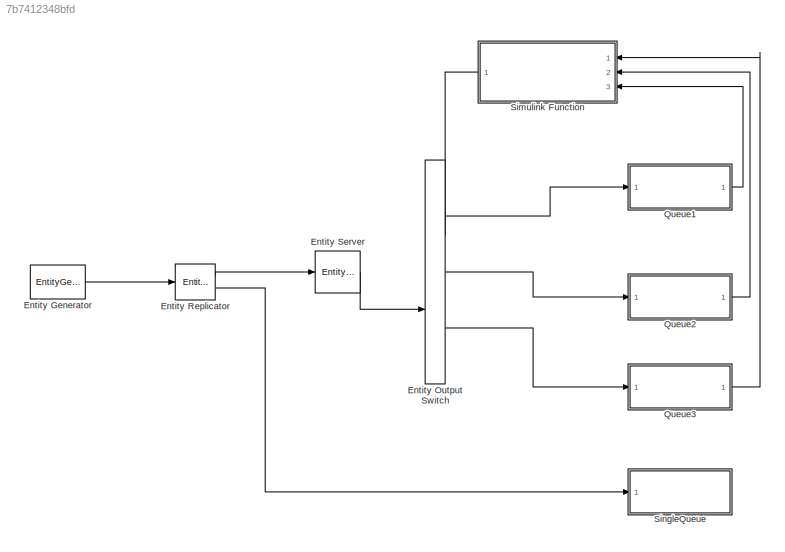
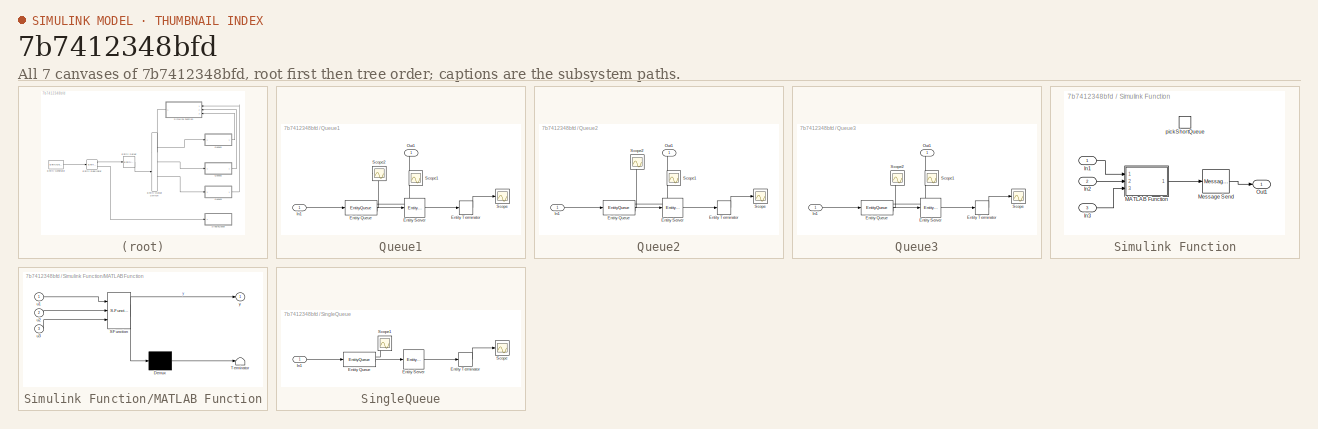
[diagram: thumbnail index - all 7 canvases of the model, root first then tree order]
MODEL slx_7b7412348bfd
KIND model
CONFIG AbsTol = auto
CONFIG FixedStep = auto
CONFIG MaxStep = auto
CONFIG MinStep = auto
CONFIG RelTol = 1e-3
CONFIG SampleTimeConstraint = Unconstrained
CONFIG Solver = VariableStepDiscrete
CONFIG SolverMode = Auto
CONFIG SolverName = VariableStepDiscrete
CONFIG StartTime = 0.0
CONFIG StopTime = 1000
BLOCK [EntityGenerator] Entity Generator
  AttributeName = ServiceTime
  EntityType = Structured
  EntityTypeName = Entity
  GenerateAction = persistent init\nif (isempty(init))\n    rng(177);\n    init = true;\nend\n\npr = rand;\nif(pr <=0.29)\n    entity.ServiceTime = exprnd(1);\nelse if (pr <=0.56)\n            entity.ServiceTime = exprnd(2);\n     else\n        entity.ServiceTime = exprnd(5);\nend
  IntergenerationTimeAction = persistent init\nif (isempty(init))\n    rng(177);\n    init = true;\nend\n\npr = rand;\nif(pr <=0.29)\n    entity.ServiceTime = exprnd(1);\nelse if (pr <=0.56)\n            entity.ServiceTime = exprnd(2);\n     else\n        entity.ServiceTime = exprnd(5);\nend
  OutputPortMap = o3
  OutputPortMessageModes = m
  Ports = [0, 1]
BLOCK [EntityOutputSwitch] Entity Output Switch
  InputPortMap = u0,u1
  InputPortMessageModes = m,m
  NumberOutputPorts = 3
  OutputPortMap = o0,o1,o2
  OutputPortMessageModes = m,m,m
  Ports = [2, 3]
  SwitchAttributeName = Attribute1
  SwitchingCriterion = From control port
BLOCK [EntityReplicator] Entity Replicator
  InputPortMap = u0
  InputPortMessageModes = m
  OutputPortMap = o0,o1
  OutputPortMessageModes = m,m
  Ports = [1, 2]
BLOCK [EntityServer] Entity Server
  Capacity = 3
  InputPortMap = u2
  InputPortMessageModes = m
  OutputPortMap = o9
  OutputPortMessageModes = m
  Ports = [1, 1]
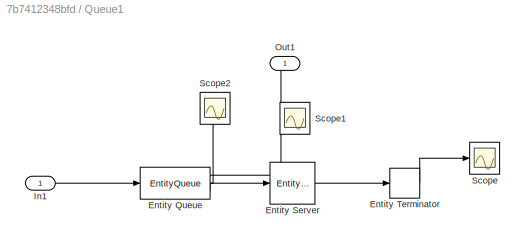
BLOCK [SubSystem] Queue1
  Ports = [1, 1]
  RequestExecContextInheritance = off
  Variant = off
BLOCK [EntityQueue] Queue1/Entity Queue
  AverageWait = on
  InputPortMap = u0
  InputPortMessageModes = m
  NumberEntitiesInBlock = on
  OutputPortMap = o1,o2,o5
  OutputPortMessageModes = n,n,m
  Ports = [1, 3]
BLOCK [EntityServer] Queue1/Entity Server
  Capacity = 1
  InputPortMap = u2
  InputPortMessageModes = m
  OutputPortMap = o9
  OutputPortMessageModes = m
  Ports = [1, 1]
BLOCK [EntityTerminator] Queue1/Entity Terminator
  InputPortMap = u0
  InputPortMessageModes = m
  NumberEntitiesArrived = on
  OutputPortMap = o0
  Ports = [1, 1]
BLOCK [Inport] Queue1/In1
  IconDisplay = Port number
BLOCK [Outport] Queue1/Out1
  IconDisplay = Port number
BLOCK [Scope] Queue1/Scope
  Ports = [1]
  ScopeSpecificationString = C++SS(StrPVP('SaveName','ScopeData'))
BLOCK [Scope] Queue1/Scope1
  Ports = [1]
  ScopeSpecificationString = C++SS(StrPVP('SaveName','ScopeData1'))
BLOCK [Scope] Queue1/Scope2
  Ports = [1]
  ScopeSpecificationString = C++SS(StrPVP('SaveName','ScopeData1'),StrPVP('SaveName','ScopeData10'))
BLOCK [SubSystem] Queue2
  Ports = [1, 1]
  RequestExecContextInheritance = off
  Variant = off
BLOCK [EntityQueue] Queue2/Entity Queue
  AverageWait = on
  InputPortMap = u0
  InputPortMessageModes = m
  NumberEntitiesInBlock = on
  OutputPortMap = o1,o2,o5
  OutputPortMessageModes = n,n,m
  Ports = [1, 3]
BLOCK [EntityServer] Queue2/Entity Server
  Capacity = 1
  InputPortMap = u2
  InputPortMessageModes = m
  OutputPortMap = o9
  OutputPortMessageModes = m
  Ports = [1, 1]
BLOCK [EntityTerminator] Queue2/Entity Terminator
  InputPortMap = u0
  InputPortMessageModes = m
  NumberEntitiesArrived = on
  OutputPortMap = o0
  Ports = [1, 1]
BLOCK [Inport] Queue2/In1
  IconDisplay = Port number
BLOCK [Outport] Queue2/Out1
  IconDisplay = Port number
BLOCK [Scope] Queue2/Scope
  Ports = [1]
  ScopeSpecificationString = C++SS(StrPVP('SaveName','ScopeData'),StrPVP('SaveName','ScopeData2'))
BLOCK [Scope] Queue2/Scope1
  Ports = [1]
  ScopeSpecificationString = C++SS(StrPVP('SaveName','ScopeData1'),StrPVP('SaveName','ScopeData3'))
BLOCK [Scope] Queue2/Scope2
  Ports = [1]
  ScopeSpecificationString = C++SS(StrPVP('SaveName','ScopeData1'),StrPVP('SaveName','ScopeData3'),StrPVP('SaveName','ScopeData9'))
BLOCK [SubSystem] Queue3
  Ports = [1, 1]
  RequestExecContextInheritance = off
  Variant = off
BLOCK [EntityQueue] Queue3/Entity Queue
  AverageWait = on
  InputPortMap = u0
  InputPortMessageModes = m
  NumberEntitiesInBlock = on
  OutputPortMap = o1,o2,o5
  OutputPortMessageModes = n,n,m
  Ports = [1, 3]
BLOCK [EntityServer] Queue3/Entity Server
  Capacity = 1
  InputPortMap = u2
  InputPortMessageModes = m
  OutputPortMap = o9
  OutputPortMessageModes = m
  Ports = [1, 1]
BLOCK [EntityTerminator] Queue3/Entity Terminator
  InputPortMap = u0
  InputPortMessageModes = m
  NumberEntitiesArrived = on
  OutputPortMap = o0
  Ports = [1, 1]
BLOCK [Inport] Queue3/In1
  IconDisplay = Port number
BLOCK [Outport] Queue3/Out1
  IconDisplay = Port number
BLOCK [Scope] Queue3/Scope
  Ports = [1]
  ScopeSpecificationString = C++SS(StrPVP('SaveName','ScopeData'),StrPVP('SaveName','ScopeData4'))
BLOCK [Scope] Queue3/Scope1
  Ports = [1]
  ScopeSpecificationString = C++SS(StrPVP('SaveName','ScopeData1'),StrPVP('SaveName','ScopeData5'))
BLOCK [Scope] Queue3/Scope2
  Ports = [1]
  ScopeSpecificationString = C++SS(StrPVP('SaveName','ScopeData1'),StrPVP('SaveName','ScopeData5'),StrPVP('SaveName','ScopeData8'))
BLOCK [SubSystem] Simulink Function
  Ports = [3, 1, 0, 1]
  RequestExecContextInheritance = off
  TreatAsAtomicUnit = on
  Variant = off
BLOCK [Inport] Simulink Function/In1
  IconDisplay = Port number
BLOCK [Inport] Simulink Function/In2
  IconDisplay = Port number
  Port = 2
BLOCK [Inport] Simulink Function/In3
  IconDisplay = Port number
  Port = 3
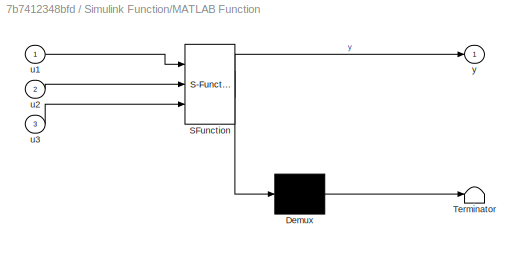
BLOCK [SubSystem] Simulink Function/MATLAB Function
  ErrorFcn = Stateflow.Translate.translate
  PermitHierarchicalResolution = ExplicitOnly
  Ports = [3, 1]
  RequestExecContextInheritance = off
  SFBlockType = MATLAB Function
  TreatAsAtomicUnit = on
  Variant = off
BLOCK [Demux] Simulink Function/MATLAB Function/ Demux 
  Outputs = 1
  Ports = [1, 1]
BLOCK [S-Function] Simulink Function/MATLAB Function/ SFunction 
  EnableBusSupport = on
  FunctionName = sf_sfun
  PortCounts = [3 2]
  Ports = [3, 2]
  SFunctionDeploymentMode = off
  Tag = Stateflow S-Function Exercitiul4_3 2
BLOCK [Terminator] Simulink Function/MATLAB Function/ Terminator 
BLOCK [Inport] Simulink Function/MATLAB Function/u1
  IconDisplay = Port number
BLOCK [Inport] Simulink Function/MATLAB Function/u2
  IconDisplay = Port number
  Port = 2
BLOCK [Inport] Simulink Function/MATLAB Function/u3
  IconDisplay = Port number
  Port = 3
BLOCK [Outport] Simulink Function/MATLAB Function/y
  IconDisplay = Port number
BLOCK [MessageSend] Simulink Function/Message Send
  InputPortMap = u1
  OutputPortMessageModes = m
  Ports = [1, 1]
BLOCK [Outport] Simulink Function/Out1
  IconDisplay = Port number
BLOCK [TriggerPort] Simulink Function/pickShortQueue
  FunctionName = pickShortQueue
  IsSimulinkFunction = on
  Ports = []
  StatesWhenEnabling = held
  TriggerType = function-call
  VariantControl = Variant
BLOCK [SubSystem] SingleQueue
  Ports = [1]
  RequestExecContextInheritance = off
  Variant = off
BLOCK [EntityQueue] SingleQueue/Entity Queue
  AverageWait = on
  InputPortMap = u0
  InputPortMessageModes = m
  OutputPortMap = o2,o5
  OutputPortMessageModes = n,m
  Ports = [1, 2]
BLOCK [EntityServer] SingleQueue/Entity Server
  Capacity = 3
  InputPortMap = u2
  InputPortMessageModes = m
  OutputPortMap = o9
  OutputPortMessageModes = m
  Ports = [1, 1]
BLOCK [EntityTerminator] SingleQueue/Entity Terminator
  InputPortMap = u0
  InputPortMessageModes = m
  NumberEntitiesArrived = on
  OutputPortMap = o0
  Ports = [1, 1]
BLOCK [Inport] SingleQueue/In1
  IconDisplay = Port number
BLOCK [Scope] SingleQueue/Scope
  Ports = [1]
  ScopeSpecificationString = C++SS(StrPVP('SaveName','ScopeData'),StrPVP('SaveName','ScopeData6'))
BLOCK [Scope] SingleQueue/Scope1
  Ports = [1]
  ScopeSpecificationString = C++SS(StrPVP('SaveName','ScopeData'),StrPVP('SaveName','ScopeData6'),StrPVP('SaveName','ScopeData7'))
LINE Entity Generator:1 -> Entity Replicator:1
LINE Entity Output Switch:1 -> Queue1:1
LINE Entity Output Switch:2 -> Queue2:1
LINE Entity Output Switch:3 -> Queue3:1
LINE Entity Replicator:1 -> Entity Server:1
LINE Entity Replicator:2 -> SingleQueue:1
LINE Entity Server:1 -> Entity Output Switch:2
NET Queue1/Entity Queue:1 -> Queue1/Out1:1, Queue1/Scope1:1
LINE Queue1/Entity Queue:2 -> Queue1/Scope2:1
LINE Queue1/Entity Queue:3 -> Queue1/Entity Server:1
LINE Queue1/Entity Server:1 -> Queue1/Entity Terminator:1
LINE Queue1/Entity Terminator:1 -> Queue1/Scope:1
LINE Queue1/In1:1 -> Queue1/Entity Queue:1
LINE Queue1:1 -> Simulink Function:3
NET Queue2/Entity Queue:1 -> Queue2/Out1:1, Queue2/Scope1:1
LINE Queue2/Entity Queue:2 -> Queue2/Scope2:1
LINE Queue2/Entity Queue:3 -> Queue2/Entity Server:1
LINE Queue2/Entity Server:1 -> Queue2/Entity Terminator:1
LINE Queue2/Entity Terminator:1 -> Queue2/Scope:1
LINE Queue2/In1:1 -> Queue2/Entity Queue:1
LINE Queue2:1 -> Simulink Function:2
NET Queue3/Entity Queue:1 -> Queue3/Out1:1, Queue3/Scope1:1
LINE Queue3/Entity Queue:2 -> Queue3/Scope2:1
LINE Queue3/Entity Queue:3 -> Queue3/Entity Server:1
LINE Queue3/Entity Server:1 -> Queue3/Entity Terminator:1
LINE Queue3/Entity Terminator:1 -> Queue3/Scope:1
LINE Queue3/In1:1 -> Queue3/Entity Queue:1
LINE Queue3:1 -> Simulink Function:1
LINE Simulink Function/In1:1 -> Simulink Function/MATLAB Function:1
LINE Simulink Function/In2:1 -> Simulink Function/MATLAB Function:2
LINE Simulink Function/In3:1 -> Simulink Function/MATLAB Function:3
LINE Simulink Function/MATLAB Function:1 -> Simulink Function/Message Send:1
LINE Simulink Function/Message Send:1 -> Simulink Function/Out1:1
LINE Simulink Function:1 -> Entity Output Switch:1
LINE SingleQueue/Entity Queue:1 -> SingleQueue/Scope1:1
LINE SingleQueue/Entity Queue:2 -> SingleQueue/Entity Server:1
LINE SingleQueue/Entity Server:1 -> SingleQueue/Entity Terminator:1
LINE SingleQueue/Entity Terminator:1 -> SingleQueue/Scope:1
LINE SingleQueue/In1:1 -> SingleQueue/Entity Queue:1
note: NET lines group one-source signal fan-out (src -> all destinations, sorted); 1:1 wires keep LINE
CHART Simulink Function/MATLAB Function states=1 transitions=1
  STATE_LABEL 'eML_blk_kernel()'
  STATE_LABEL 'SCRIPT:\nfunction y = fct(u1,u2,u3)\n%#codegen\n\n[a,y] = min([u3,u2,u1]);'
